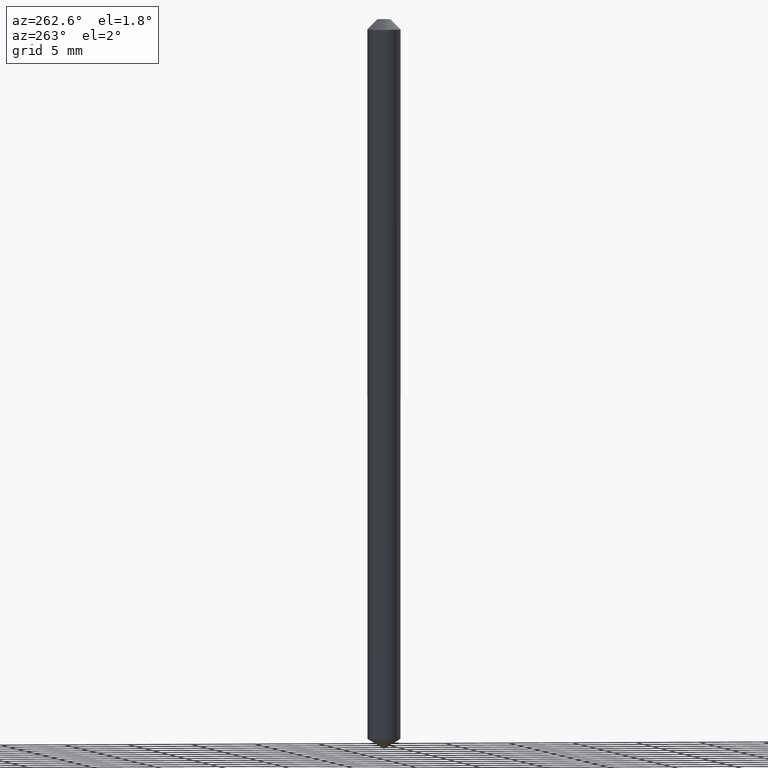
[diagram: clean part render]
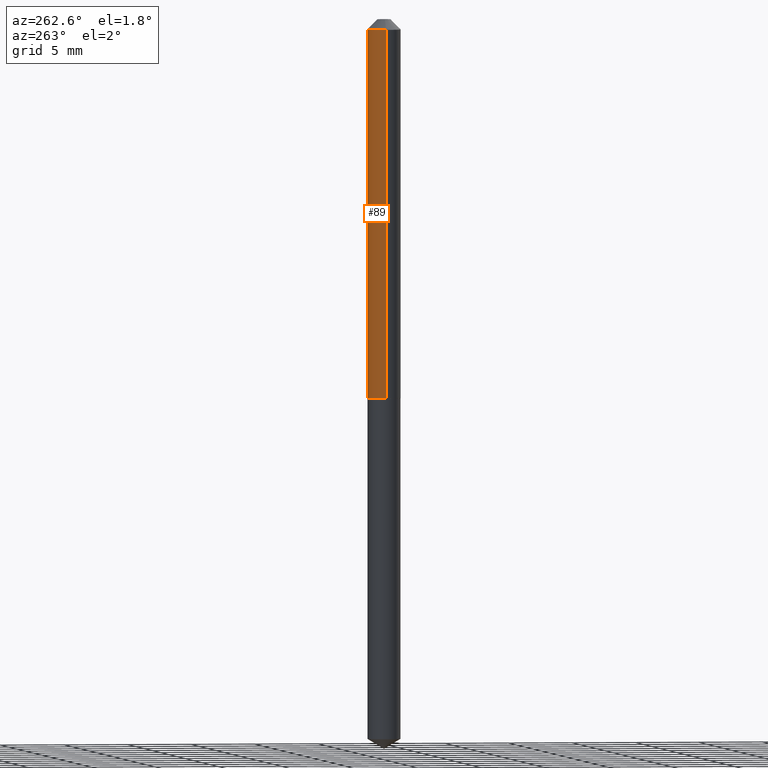
[diagram: same view with one face highlighted and labeled with its STEP entity id]
A machine part, auxiliary view. The second image highlights one B-rep face of the part: STEP entity #89.
In plain terms, the highlighted cylindrical surface (edge-blend (fillet) strip) has radius 1.3005 mm, axis along (-0, 0, 1).
Its self-contained STEP definition (entity closure, byte-faithful):
#3 = VECTOR ( 'NONE', #124, 39.37007874015748143 ) ;
#8 = EDGE_CURVE ( 'NONE', #314, #20, #386, .T. ) ;
#20 = VERTEX_POINT ( 'NONE', #208 ) ;
#25 = DIRECTION ( 'NONE',  ( -2.445468806185136597E-29, 3.491481338843145583E-15, 1.000000000000000000 ) ) ;
#26 = DIRECTION ( 'NONE',  ( -2.445468806185136597E-29, 3.491481338843145583E-15, 1.000000000000000000 ) ) ;
#37 = EDGE_CURVE ( 'NONE', #201, #42, #135, .T. ) ;
#42 = VERTEX_POINT ( 'NONE', #78 ) ;
#55 = DIRECTION ( 'NONE',  ( 1.000000000000000000, -6.982962677686273021E-15, 0.000000000000000000 ) ) ;
#58 = DIRECTION ( 'NONE',  ( 1.000000000000000000, -6.982962677686267499E-15, 0.000000000000000000 ) ) ;
#76 = CARTESIAN_POINT ( 'NONE',  ( -0.05120000000000007184, 3.637978807091718056E-16, -2.518494766210515431E-30 ) ) ;
#78 = CARTESIAN_POINT ( 'NONE',  ( -0.05120000000000014123, -3.703428730909207693E-15, -1.164899999999999824 ) ) ;
#89 = ADVANCED_FACE ( 'NONE', ( #327 ), #302, .T. ) ;
#93 = EDGE_CURVE ( 'NONE', #201, #314, #156, .T. ) ;
#99 = AXIS2_PLACEMENT_3D ( 'NONE', #127, #390, #275 ) ;
#103 = DIRECTION ( 'NONE',  ( -2.445468806185136877E-29, 3.491481338843145188E-15, 1.000000000000000000 ) ) ;
#124 = DIRECTION ( 'NONE',  ( -2.445468806185136877E-29, 3.491481338843145188E-15, 1.000000000000000000 ) ) ;
#127 = CARTESIAN_POINT ( 'NONE',  ( 0.000000000000000000, 0.000000000000000000, 0.000000000000000000 ) ) ;
#134 = CARTESIAN_POINT ( 'NONE',  ( 0.05120000000000001633, -4.666364809363860477E-16, -0.03125000000000020817 ) ) ;
#135 = CIRCLE ( 'NONE', #182, 0.05120000000000014123 ) ;
#137 = LINE ( 'NONE', #76, #326 ) ;
#143 = ORIENTED_EDGE ( 'NONE', *, *, #340, .T. ) ;
#156 = LINE ( 'NONE', #355, #3 ) ;
#182 = AXIS2_PLACEMENT_3D ( 'NONE', #321, #26, #55 ) ;
#195 = ORIENTED_EDGE ( 'NONE', *, *, #8, .F. ) ;
#201 = VERTEX_POINT ( 'NONE', #216 ) ;
#208 = CARTESIAN_POINT ( 'NONE',  ( -0.05120000000000001633, -1.724369821019441680E-15, -0.03125000000000020817 ) ) ;
#216 = CARTESIAN_POINT ( 'NONE',  ( 0.05120000000000014123, -4.424754300715918073E-15, -1.164899999999999824 ) ) ;
#231 = ORIENTED_EDGE ( 'NONE', *, *, #93, .F. ) ;
#275 = DIRECTION ( 'NONE',  ( 1.000000000000000000, -6.982962677686266711E-15, 4.876176775795936353E-29 ) ) ;
#302 = CYLINDRICAL_SURFACE ( 'NONE', #99, 0.05120000000000007184 ) ;
#314 = VERTEX_POINT ( 'NONE', #134 ) ;
#321 = CARTESIAN_POINT ( 'NONE',  ( 2.848726612325065508E-29, -4.067226611618379942E-15, -1.164899999999999824 ) ) ;
#323 = CARTESIAN_POINT ( 'NONE',  ( 7.642090019328602662E-31, -1.091087918388490267E-16, -0.03125000000000020817 ) ) ;
#326 = VECTOR ( 'NONE', #103, 39.37007874015748143 ) ;
#327 = FACE_OUTER_BOUND ( 'NONE', #349, .T. ) ;
#340 = EDGE_CURVE ( 'NONE', #42, #20, #137, .T. ) ;
#346 = AXIS2_PLACEMENT_3D ( 'NONE', #323, #25, #58 ) ;
#349 = EDGE_LOOP ( 'NONE', ( #379, #143, #195, #231 ) ) ;
#355 = CARTESIAN_POINT ( 'NONE',  ( 0.05120000000000007184, -3.575276890975373415E-16, 2.496602509207522887E-30 ) ) ;
#379 = ORIENTED_EDGE ( 'NONE', *, *, #37, .T. ) ;
#386 = CIRCLE ( 'NONE', #346, 0.05120000000000001633 ) ;
#390 = DIRECTION ( 'NONE',  ( -2.445468806185136597E-29, 3.491481338843145583E-15, 1.000000000000000000 ) ) ;